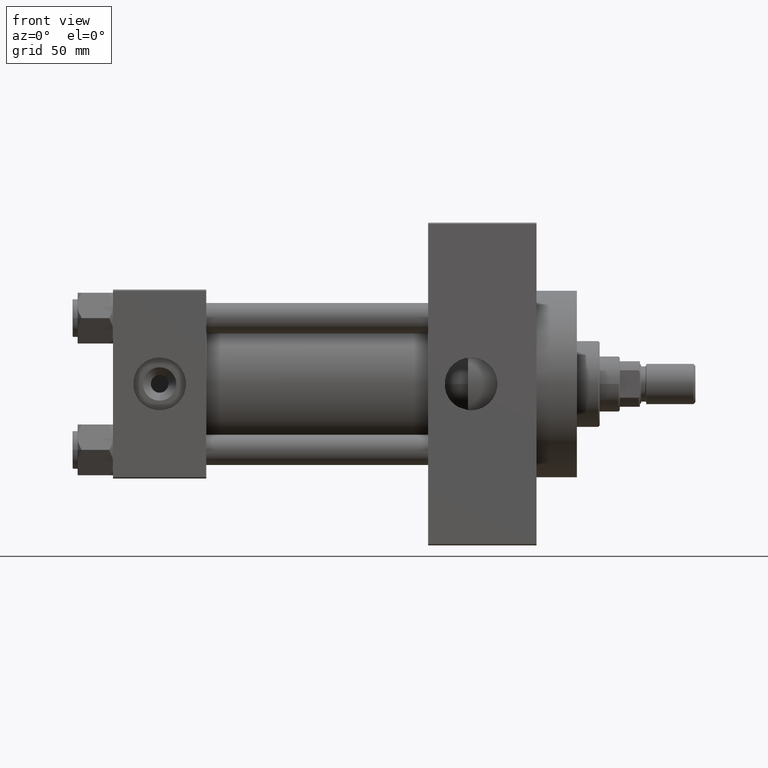
[diagram: clean part render]
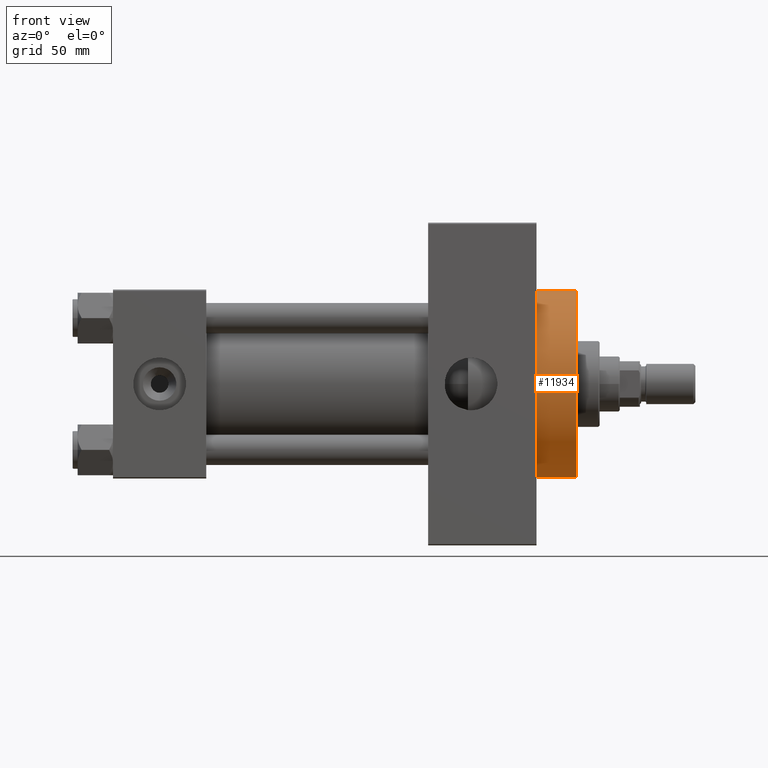
[diagram: same view with one face highlighted and labeled with its STEP entity id]
A machine part, front view. The second image highlights one B-rep face of the part: STEP entity #11934.
In plain terms, the highlighted cylindrical surface (partial cylindrical patch) has radius 37 mm, axis along (-1, -0, -0).
Its self-contained STEP definition (entity closure, byte-faithful):
#1394 = VECTOR ( 'NONE', #20097, 1000.000000000000000 ) ;
#2866 = AXIS2_PLACEMENT_3D ( 'NONE', #41924, #7302, #21726 ) ;
#3660 = CIRCLE ( 'NONE', #2866, 37.00000000000000000 ) ;
#5905 = CARTESIAN_POINT ( 'NONE',  ( 184.0000000000000000, 4.531193156845206793E-15, -37.00000000000000000 ) ) ;
#7302 = DIRECTION ( 'NONE',  ( 1.000000000000000000, 0.000000000000000000, 0.000000000000000000 ) ) ;
#9093 = CYLINDRICAL_SURFACE ( 'NONE', #31798, 37.00000000000000000 ) ;
#9164 = CARTESIAN_POINT ( 'NONE',  ( 167.9999999999999716, 4.531193156845206793E-15, -37.00000000000000000 ) ) ;
#10209 = EDGE_CURVE ( 'NONE', #27868, #12208, #40058, .T. ) ;
#11934 = ADVANCED_FACE ( 'NONE', ( #47753 ), #9093, .T. ) ;
#12208 = VERTEX_POINT ( 'NONE', #35309 ) ;
#13017 = CARTESIAN_POINT ( 'NONE',  ( 184.0000000000000000, 0.000000000000000000, 37.00000000000000000 ) ) ;
#13377 = DIRECTION ( 'NONE',  ( 0.000000000000000000, 0.000000000000000000, 1.000000000000000000 ) ) ;
#14098 = DIRECTION ( 'NONE',  ( 0.000000000000000000, 0.000000000000000000, -1.000000000000000000 ) ) ;
#14595 = VECTOR ( 'NONE', #45197, 1000.000000000000000 ) ;
#15907 = CARTESIAN_POINT ( 'NONE',  ( 184.0000000000000000, 0.000000000000000000, 37.00000000000000000 ) ) ;
#17898 = CARTESIAN_POINT ( 'NONE',  ( 184.0000000000000000, 4.531193156845206793E-15, -37.00000000000000000 ) ) ;
#20097 = DIRECTION ( 'NONE',  ( -1.000000000000000000, -0.000000000000000000, -0.000000000000000000 ) ) ;
#20358 = AXIS2_PLACEMENT_3D ( 'NONE', #37334, #33791, #14098 ) ;
#21154 = CIRCLE ( 'NONE', #20358, 37.00000000000000000 ) ;
#21726 = DIRECTION ( 'NONE',  ( 0.000000000000000000, 0.000000000000000000, -1.000000000000000000 ) ) ;
#23310 = CARTESIAN_POINT ( 'NONE',  ( 184.0000000000000000, 0.000000000000000000, 0.000000000000000000 ) ) ;
#24250 = DIRECTION ( 'NONE',  ( -1.000000000000000000, -0.000000000000000000, -0.000000000000000000 ) ) ;
#26523 = VERTEX_POINT ( 'NONE', #5905 ) ;
#27105 = ORIENTED_EDGE ( 'NONE', *, *, #33187, .T. ) ;
#27868 = VERTEX_POINT ( 'NONE', #15907 ) ;
#29265 = LINE ( 'NONE', #17898, #14595 ) ;
#29796 = EDGE_LOOP ( 'NONE', ( #44657, #39801, #47871, #27105 ) ) ;
#30784 = VERTEX_POINT ( 'NONE', #9164 ) ;
#31798 = AXIS2_PLACEMENT_3D ( 'NONE', #23310, #24250, #13377 ) ;
#33187 = EDGE_CURVE ( 'NONE', #12208, #30784, #21154, .T. ) ;
#33791 = DIRECTION ( 'NONE',  ( 1.000000000000000000, 0.000000000000000000, 0.000000000000000000 ) ) ;
#35309 = CARTESIAN_POINT ( 'NONE',  ( 167.9999999999999716, 0.000000000000000000, 37.00000000000000000 ) ) ;
#37334 = CARTESIAN_POINT ( 'NONE',  ( 167.9999999999999716, 0.000000000000000000, 0.000000000000000000 ) ) ;
#37626 = EDGE_CURVE ( 'NONE', #27868, #26523, #3660, .T. ) ;
#39801 = ORIENTED_EDGE ( 'NONE', *, *, #37626, .F. ) ;
#40058 = LINE ( 'NONE', #13017, #1394 ) ;
#40766 = EDGE_CURVE ( 'NONE', #26523, #30784, #29265, .T. ) ;
#41924 = CARTESIAN_POINT ( 'NONE',  ( 184.0000000000000000, 0.000000000000000000, 0.000000000000000000 ) ) ;
#44657 = ORIENTED_EDGE ( 'NONE', *, *, #40766, .F. ) ;
#45197 = DIRECTION ( 'NONE',  ( -1.000000000000000000, -0.000000000000000000, -0.000000000000000000 ) ) ;
#47753 = FACE_OUTER_BOUND ( 'NONE', #29796, .T. ) ;
#47871 = ORIENTED_EDGE ( 'NONE', *, *, #10209, .T. ) ;